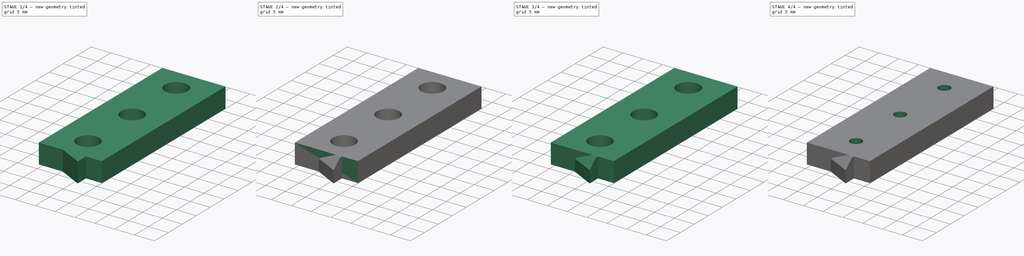
[diagram: build sequence overview — one tinted view per stage of 4, left to right]
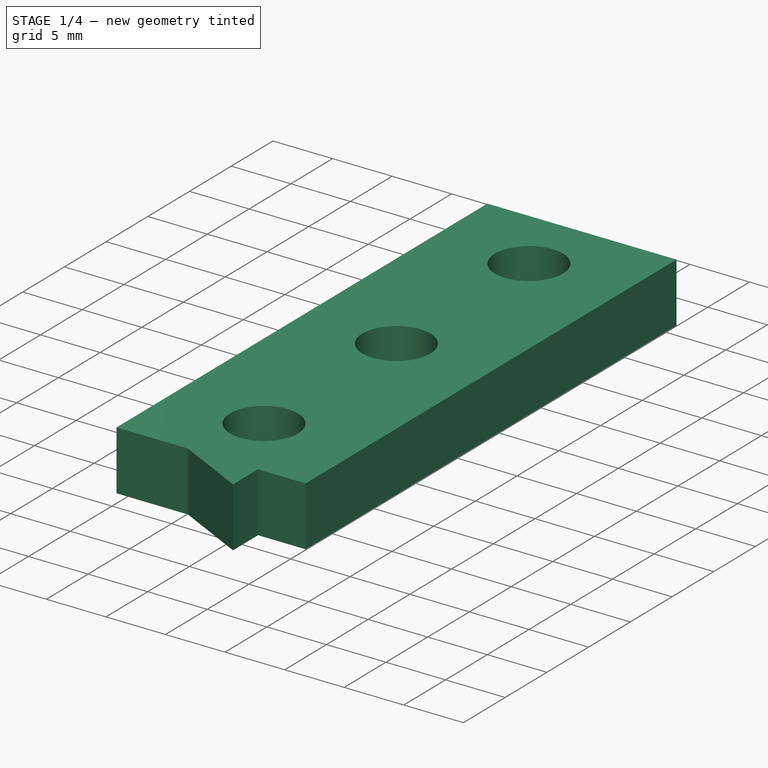
[diagram: stage 1 of 4 — iso view after this stage's code; geometry added in this stage tinted green]
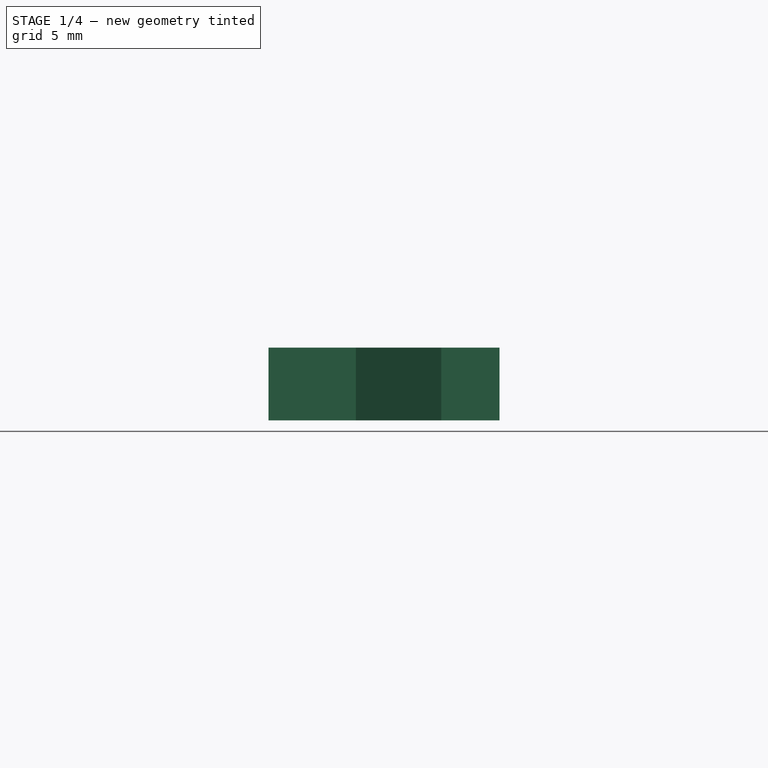
[diagram: stage 1 of 4 — front view after this stage's code; geometry added in this stage tinted green]
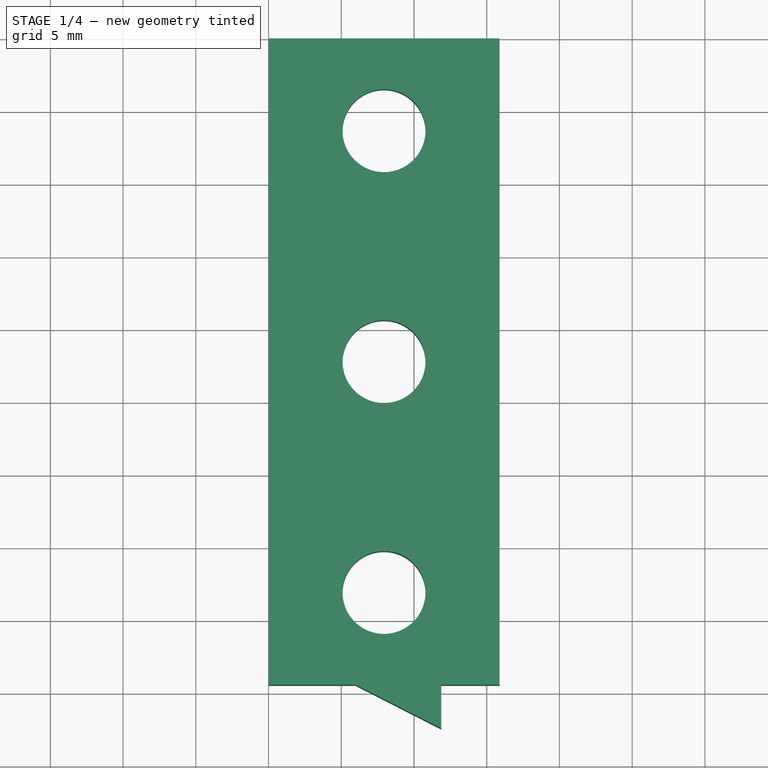
[diagram: stage 1 of 4 — top view after this stage's code; geometry added in this stage tinted green]
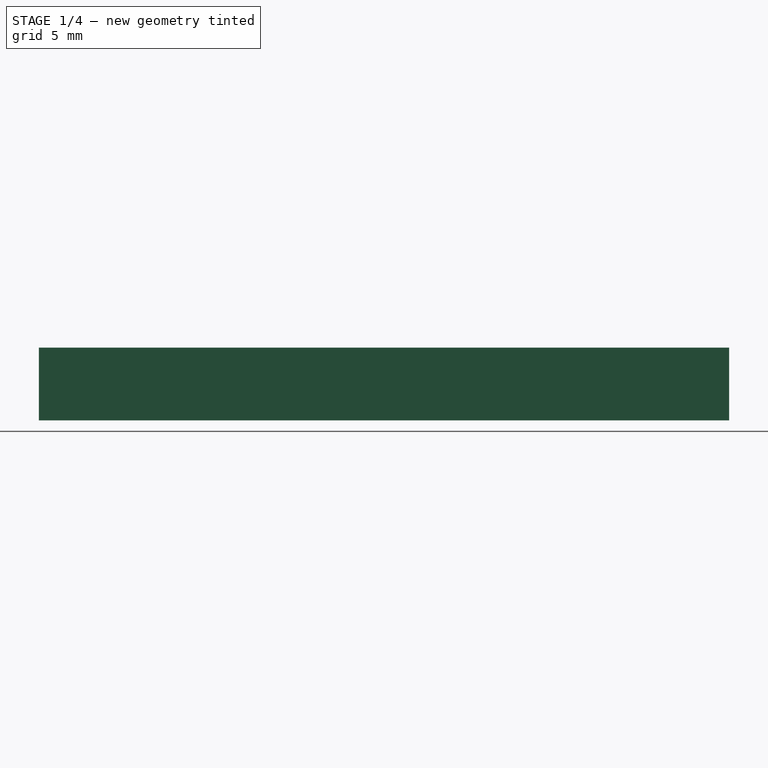
[diagram: stage 1 of 4 — right view after this stage's code; geometry added in this stage tinted green]
FCSTD DOCUMENT  (FreeCAD 0.18R16146 (Git))
Label: 1u-connectors
License: All rights reserved
LicenseURL: http://en.wikipedia.org/wiki/All_rights_reserved
objects: Sketcher::SketchObject×8, PartDesign::Pad×6, PartDesign::Body×6, PartDesign::Chamfer×6, PartDesign::Pocket×2
note: 36 computed .brp shape members not serialized (recipe doc carries the construction recipe); baked Part::Feature solids carry a one-line shape summary decoded from their .brp

FEATURE [Sketcher::SketchObject] Sketch
  MapMode = 5
  Support = -> [XY_Plane]
  sketch-geometry (19):
    g0: LineSegment StartX=15.875 StartY=0 StartZ=0 EndX=15.875 EndY=-44.45 EndZ=0
    g1: LineSegment StartX=0 StartY=-44.45 StartZ=0 EndX=0 EndY=0 EndZ=0
    g2: Circle CenterX=7.9375 CenterY=-22.225 CenterZ=0 NormalX=0 NormalY=0 NormalZ=1 AngleXU=0 Radius=2.85
    g3: LineSegment [constr] StartX=7.9375 StartY=-22.225 StartZ=0 EndX=7.9375 EndY=0 EndZ=0
    g4: LineSegment [constr] StartX=7.9375 StartY=-22.225 StartZ=0 EndX=7.9375 EndY=-44.45 EndZ=0
    g5: LineSegment [constr] StartX=7.9375 StartY=-22.225 StartZ=0 EndX=15.875 EndY=-22.225 EndZ=0
    g6: LineSegment [constr] StartX=7.9375 StartY=-22.225 StartZ=0 EndX=0 EndY=-22.225 EndZ=0
    g7: Circle CenterX=7.9375 CenterY=-38.1 CenterZ=0 NormalX=0 NormalY=0 NormalZ=1 AngleXU=0 Radius=2.85
    g8: Circle CenterX=7.9375 CenterY=-6.35 CenterZ=0 NormalX=0 NormalY=0 NormalZ=1 AngleXU=0 Radius=2.85
    g9: LineSegment [constr] StartX=0 StartY=0 StartZ=0 EndX=15.875 EndY=0 EndZ=0
    g10: LineSegment StartX=0 StartY=0 StartZ=0 EndX=6 EndY=0 EndZ=0
    g11: LineSegment StartX=6 StartY=0 StartZ=0 EndX=11.875 EndY=-3 EndZ=0
    g12: LineSegment StartX=15.875 StartY=0 StartZ=0 EndX=11.875 EndY=0 EndZ=0
    g13: LineSegment StartX=11.875 StartY=0 StartZ=0 EndX=11.875 EndY=-3 EndZ=0
    g14: LineSegment [constr] StartX=0 StartY=-44.45 StartZ=0 EndX=15.875 EndY=-44.45 EndZ=0
    g15: LineSegment StartX=0 StartY=-44.45 StartZ=0 EndX=6 EndY=-44.45 EndZ=0
    g16: LineSegment StartX=15.875 StartY=-44.45 StartZ=0 EndX=11.875 EndY=-44.45 EndZ=0
    g17: LineSegment StartX=11.875 StartY=-44.45 StartZ=0 EndX=11.875 EndY=-47.45 EndZ=0
    g18: LineSegment StartX=11.875 StartY=-47.45 StartZ=0 EndX=6 EndY=-44.45 EndZ=0
  constraints (54):
    c: Vertical(g0)
    c: Vertical(g1)
    c: DistanceX(g1,g0) = 15.875
    c: DistanceY(g1,g1) = 44.45
    c: Coincident(g3,g2)
    c: Vertical(g3)
    c: Coincident(g4,g2)
    c: Vertical(g4)
    c: Coincident(g5,g2)
    c: Horizontal(g5)
    c: Coincident(g6,g2)
    c: PointOnObject(g6,g1)
    c: Horizontal(g6)
    c: Equal(g6,g5)
    c: Equal(g3,g4)
    c: PointOnObject(g7,g4)
    c: PointOnObject(g8,g3)
    c: DistanceY(g2,g8) = 15.875
    c: DistanceY(g7,g8) = 31.75
    c: Equal(g8,g2)
    c: Equal(g2,g7)
    c: PointOnObject(g5,g0)
    c: Radius(g2) = 2.85
    c: Coincident(g1,g-1)
    c: Coincident(g9,g1)
    c: Coincident(g9,g0)
    c: Horizontal(g9)
    c: PointOnObject(g3,g9)
    c: PointOnObject(g10,g9)
    c: Coincident(g11,g10)
    c: Coincident(g12,g0)
    c: PointOnObject(g12,g9)
    c: Coincident(g13,g12)
    c: Coincident(g13,g11)
    c: Vertical(g13)
    c: DistanceX(g1,g10) = 6
    c: DistanceX(g12,g0) = 4
    c: DistanceY(g11,g12) = 3
    c: Coincident(g10,g1)
    c: Coincident(g14,g1)
    c: Coincident(g14,g0)
    c: Horizontal(g14)
    c: PointOnObject(g4,g14)
    c: Coincident(g15,g1)
    c: PointOnObject(g15,g14)
    c: Equal(g15,g10)
    c: Coincident(g16,g0)
    c: PointOnObject(g16,g14)
    c: Equal(g16,g12)
    c: Vertical(g17)
    c: Coincident(g18,g17)
    c: Coincident(g18,g15)
    c: Coincident(g17,g16)
    c: Equal(g17,g13)
FEATURE [PartDesign::Pad] Pad
  Length = 5
  Length2 = 100
  Profile = -> Sketch
  Type = 0
FEATURE [Sketcher::SketchObject] Sketch006
  MapMode = 5
  Support = -> [XY_Plane002]
  sketch-geometry (15):
    g0: LineSegment StartX=15.875 StartY=0 StartZ=0 EndX=15.875 EndY=-44.45 EndZ=0
    g1: LineSegment StartX=0 StartY=-44.45 StartZ=0 EndX=0 EndY=0 EndZ=0
    g2: Circle CenterX=7.9375 CenterY=-22.225 CenterZ=0 NormalX=0 NormalY=0 NormalZ=1 AngleXU=0 Radius=2.85
    g3: LineSegment [constr] StartX=7.9375 StartY=-22.225 StartZ=0 EndX=7.9375 EndY=0 EndZ=0
    g4: LineSegment [constr] StartX=7.9375 StartY=-22.225 StartZ=0 EndX=7.9375 EndY=-44.45 EndZ=0
    g5: LineSegment [constr] StartX=7.9375 StartY=-22.225 StartZ=0 EndX=15.875 EndY=-22.225 EndZ=0
    g6: LineSegment [constr] StartX=7.9375 StartY=-22.225 StartZ=0 EndX=0 EndY=-22.225 EndZ=0
    g7: Circle CenterX=7.9375 CenterY=-38.1 CenterZ=0 NormalX=0 NormalY=0 NormalZ=1 AngleXU=0 Radius=2.85
    g8: Circle CenterX=7.9375 CenterY=-6.35 CenterZ=0 NormalX=0 NormalY=0 NormalZ=1 AngleXU=0 Radius=2.85
    g9: LineSegment StartX=0 StartY=0 StartZ=0 EndX=15.875 EndY=0 EndZ=0
    g10: LineSegment [constr] StartX=0 StartY=-44.45 StartZ=0 EndX=15.875 EndY=-44.45 EndZ=0
    g11: LineSegment StartX=0 StartY=-44.45 StartZ=0 EndX=6 EndY=-44.45 EndZ=0
    g12: LineSegment StartX=15.875 StartY=-44.45 StartZ=0 EndX=11.875 EndY=-44.45 EndZ=0
    g13: LineSegment StartX=11.875 StartY=-44.45 StartZ=0 EndX=11.875 EndY=-47.45 EndZ=0
    g14: LineSegment StartX=11.875 StartY=-47.45 StartZ=0 EndX=6 EndY=-44.45 EndZ=0
  constraints (43):
    c: Vertical(g0)
    c: Vertical(g1)
    c: DistanceX(g1,g0) = 15.875
    c: DistanceY(g1,g1) = 44.45
    c: Coincident(g3,g2)
    c: Vertical(g3)
    c: Coincident(g4,g2)
    c: Vertical(g4)
    c: Coincident(g5,g2)
    c: Horizontal(g5)
    c: Coincident(g6,g2)
    c: PointOnObject(g6,g1)
    c: Horizontal(g6)
    c: Equal(g6,g5)
    c: Equal(g3,g4)
    c: PointOnObject(g7,g4)
    c: PointOnObject(g8,g3)
    c: DistanceY(g2,g8) = 15.875
    c: DistanceY(g7,g8) = 31.75
    c: Equal(g8,g2)
    c: Equal(g2,g7)
    c: PointOnObject(g5,g0)
    c: Radius(g2) = 2.85
    c: Coincident(g1,g-1)
    c: Coincident(g9,g1)
    c: Coincident(g9,g0)
    c: Horizontal(g9)
    c: PointOnObject(g3,g9)
    c: Coincident(g10,g1)
    c: Coincident(g10,g0)
    c: Horizontal(g10)
    c: PointOnObject(g4,g10)
    c: Coincident(g11,g1)
    c: PointOnObject(g11,g10)
    c: Coincident(g12,g0)
    c: PointOnObject(g12,g10)
    c: Vertical(g13)
    c: Coincident(g14,g13)
    c: Coincident(g14,g11)
    c: Coincident(g13,g12)
    c: DistanceX(g11,g11) = 6
    c: DistanceX(g12,g12) = 4
    c: DistanceY(g13,g13) = 3
FEATURE [PartDesign::Pad] Pad002
  Length = 5
  Length2 = 100
  Profile = -> Sketch006
  Type = 0
FEATURE [PartDesign::Chamfer] Chamfer
  Base = -> Pad [Edge35,Edge38,Edge32]
  BaseFeature = -> Pad
  Size = 1.7
FEATURE [PartDesign::Body] Body002  label="1u-6m-end-flat"
  Group = -> [Sketch006,Pad002,Chamfer001,Chamfer004]
  Origin = -> Origin002
  Placement = pos=(0,50.8,0) rot=(0,0,1;0rad)
  Tip = -> Chamfer004
FEATURE [PartDesign::Chamfer] Chamfer005
  Base = -> Chamfer [Edge10]
  BaseFeature = -> Chamfer
  Size = 2
FEATURE [PartDesign::Body] Body  label="1u-6m-connector"
  Group = -> [Sketch,Pad,Chamfer,Chamfer005]
  Origin = -> Origin
  Tip = -> Chamfer005
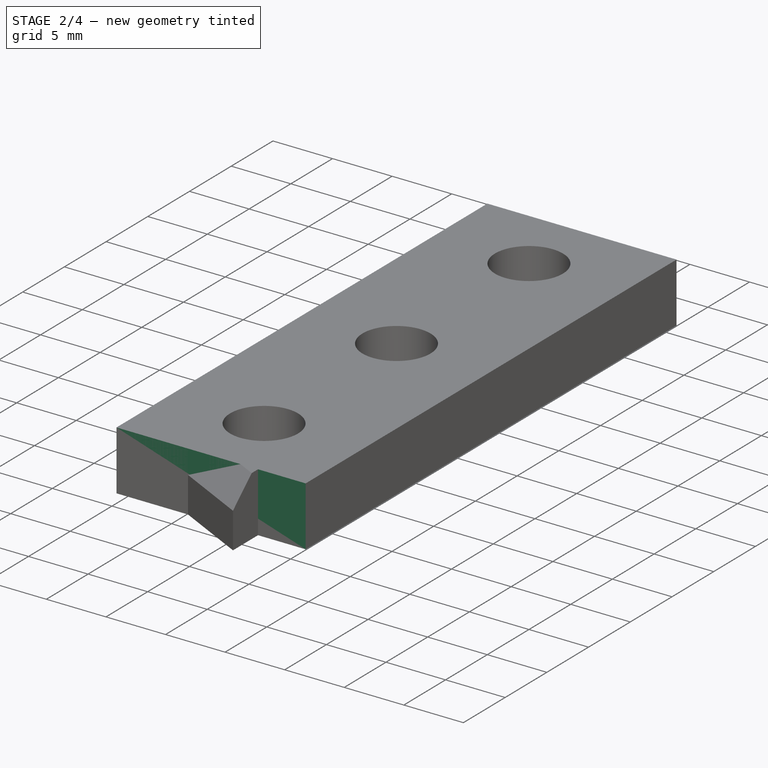
[diagram: stage 2 of 4 — iso view after this stage's code; geometry added in this stage tinted green]
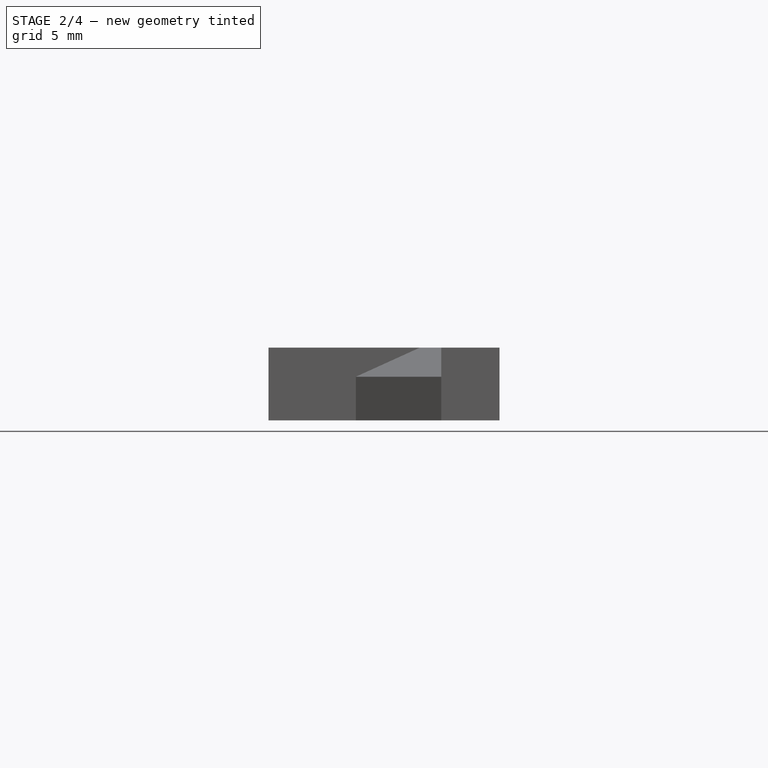
[diagram: stage 2 of 4 — front view after this stage's code; geometry added in this stage tinted green]
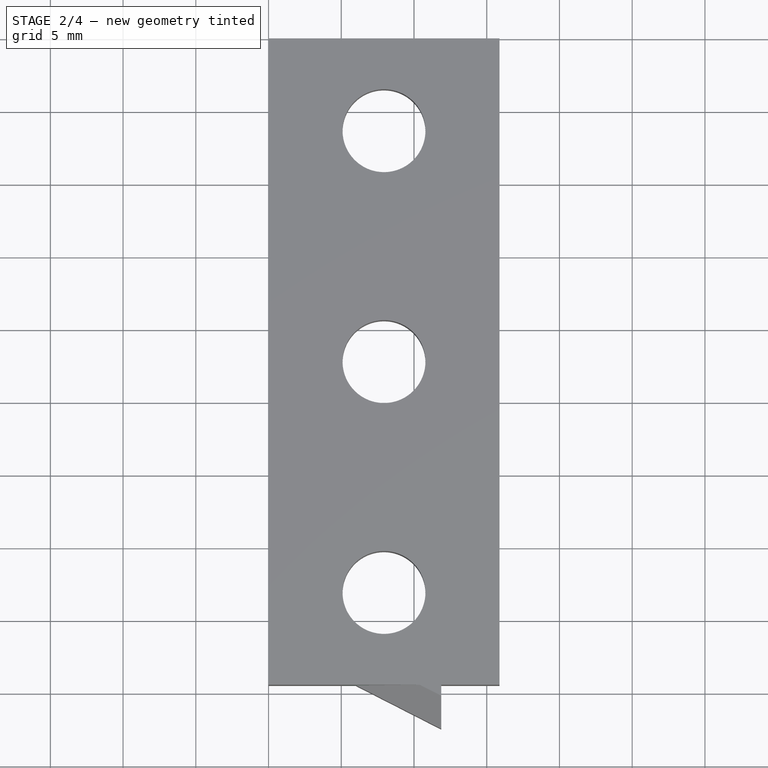
[diagram: stage 2 of 4 — top view after this stage's code; geometry added in this stage tinted green]
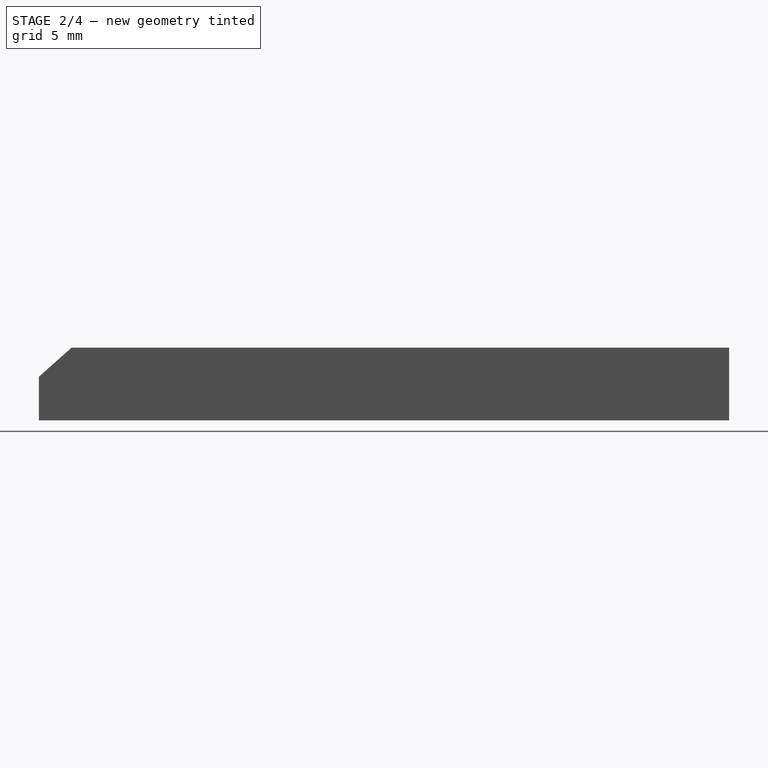
[diagram: stage 2 of 4 — right view after this stage's code; geometry added in this stage tinted green]
FEATURE [PartDesign::Body] Body004  label="1u-3m"
  Group = -> [Sketch010,Pad004,Sketch009,Pocket004]
  Origin = -> Origin004
  Placement = pos=(90,0,0) rot=(0,0,1;0rad)
  Tip = -> Pocket004
FEATURE [Sketcher::SketchObject] Sketch012
  MapMode = 5
  Support = -> [XY_Plane005]
  sketch-geometry (11):
    g0: LineSegment StartX=15.875 StartY=0 StartZ=0 EndX=15.875 EndY=-44.45 EndZ=0
    g1: LineSegment StartX=0 StartY=-44.45 StartZ=0 EndX=0 EndY=0 EndZ=0
    g2: Circle CenterX=7.9375 CenterY=-22.225 CenterZ=0 NormalX=0 NormalY=0 NormalZ=1 AngleXU=0 Radius=2.85
    g3: LineSegment [constr] StartX=7.9375 StartY=-22.225 StartZ=0 EndX=7.9375 EndY=0 EndZ=0
    g4: LineSegment [constr] StartX=7.9375 StartY=-22.225 StartZ=0 EndX=7.9375 EndY=-44.45 EndZ=0
    g5: LineSegment [constr] StartX=7.9375 StartY=-22.225 StartZ=0 EndX=15.875 EndY=-22.225 EndZ=0
    g6: LineSegment [constr] StartX=7.9375 StartY=-22.225 StartZ=0 EndX=0 EndY=-22.225 EndZ=0
    g7: Circle CenterX=7.9375 CenterY=-38.1 CenterZ=0 NormalX=0 NormalY=0 NormalZ=1 AngleXU=0 Radius=2.85
    g8: Circle CenterX=7.9375 CenterY=-6.35 CenterZ=0 NormalX=0 NormalY=0 NormalZ=1 AngleXU=0 Radius=2.85
    g9: LineSegment StartX=0 StartY=0 StartZ=0 EndX=15.875 EndY=0 EndZ=0
    g10: LineSegment StartX=0 StartY=-44.45 StartZ=0 EndX=15.875 EndY=-44.45 EndZ=0
  constraints (32):
    c: Vertical(g0)
    c: Vertical(g1)
    c: DistanceX(g1,g0) = 15.875
    c: DistanceY(g1,g1) = 44.45
    c: Coincident(g3,g2)
    c: Vertical(g3)
    c: Coincident(g4,g2)
    c: Vertical(g4)
    c: Coincident(g5,g2)
    c: Horizontal(g5)
    c: Coincident(g6,g2)
    c: PointOnObject(g6,g1)
    c: Horizontal(g6)
    c: Equal(g6,g5)
    c: Equal(g3,g4)
    c: PointOnObject(g7,g4)
    c: PointOnObject(g8,g3)
    c: DistanceY(g2,g8) = 15.875
    c: DistanceY(g7,g8) = 31.75
    c: Equal(g8,g2)
    c: Equal(g2,g7)
    c: PointOnObject(g5,g0)
    c: Radius(g2) = 2.85
    c: Coincident(g1,g-1)
    c: Coincident(g9,g1)
    c: Coincident(g9,g0)
    c: Horizontal(g9)
    c: PointOnObject(g3,g9)
    c: Coincident(g10,g1)
    c: Coincident(g10,g0)
    c: Horizontal(g10)
    c: PointOnObject(g4,g10)
FEATURE [PartDesign::Pad] Pad005
  Length = 5
  Length2 = 100
  Profile = -> Sketch012
  Type = 0
FEATURE [PartDesign::Chamfer] Chamfer001
  Base = -> Pad002 [Edge23,Edge29,Edge26]
  BaseFeature = -> Pad002
  Size = 1.7
FEATURE [PartDesign::Body] Body005  label="1u-6m"
  Group = -> [Sketch012,Pad005,Chamfer003]
  Origin = -> Origin005
  Placement = pos=(30,0,0) rot=(0,0,1;0rad)
  Tip = -> Chamfer003
FEATURE [PartDesign::Chamfer] Chamfer004
  Base = -> Chamfer001 [Edge11]
  BaseFeature = -> Chamfer001
  Size = 2
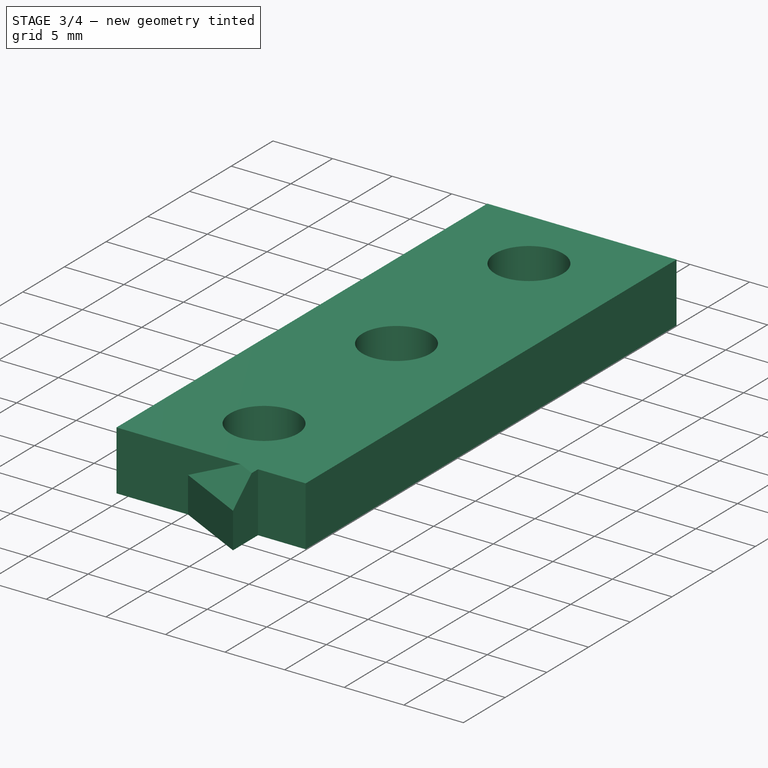
[diagram: stage 3 of 4 — iso view after this stage's code; geometry added in this stage tinted green]
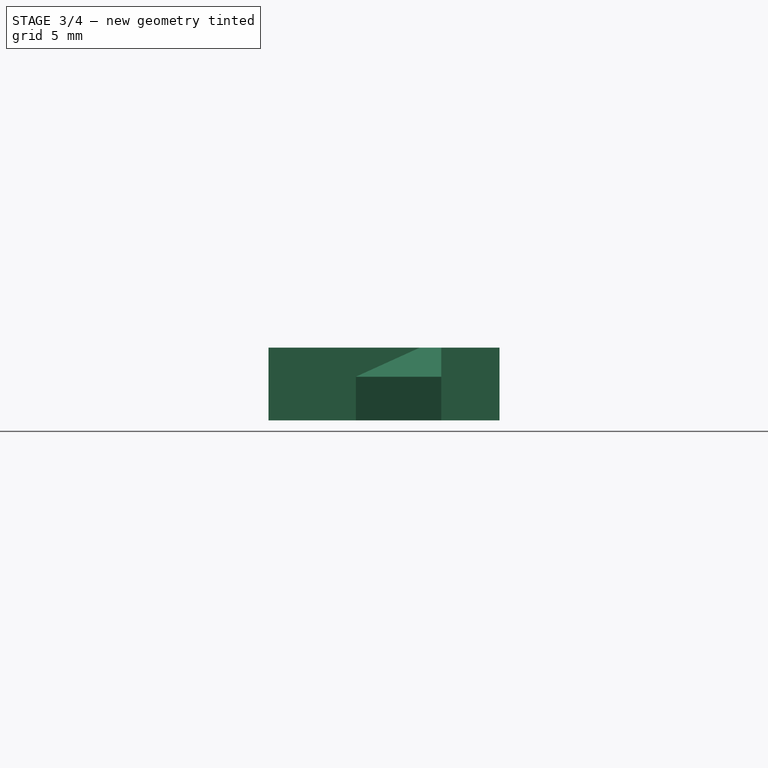
[diagram: stage 3 of 4 — front view after this stage's code; geometry added in this stage tinted green]
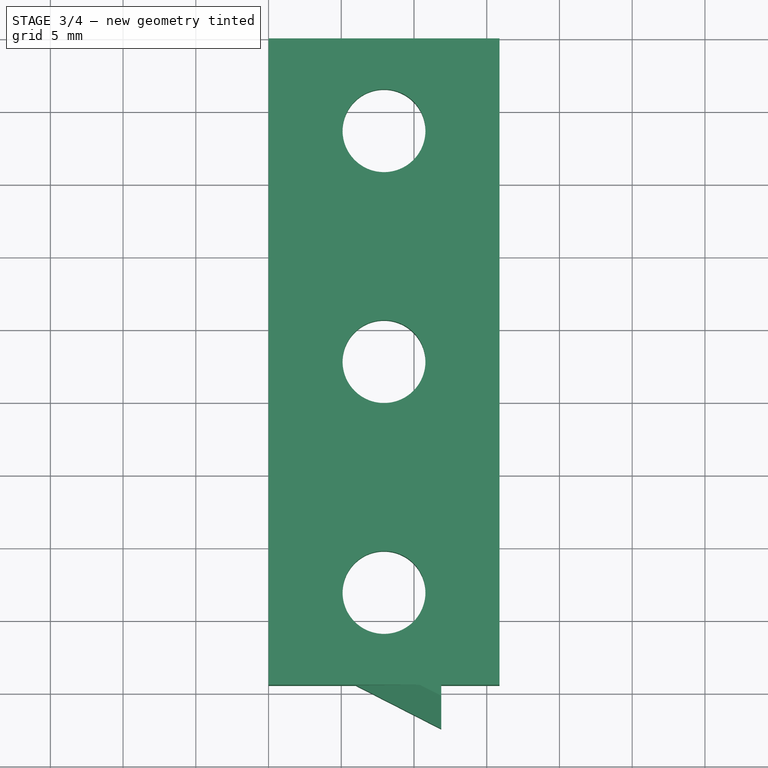
[diagram: stage 3 of 4 — top view after this stage's code; geometry added in this stage tinted green]
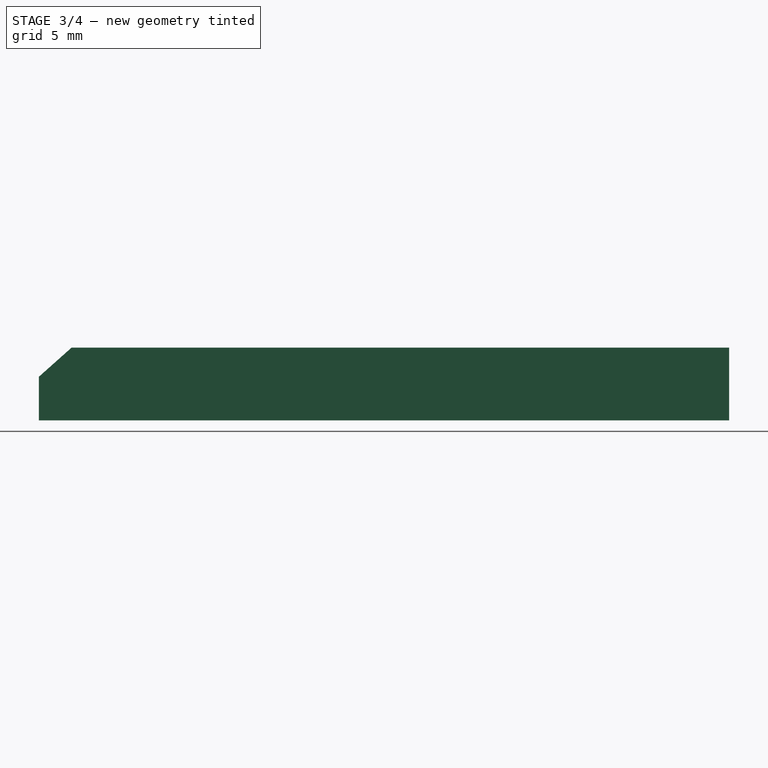
[diagram: stage 3 of 4 — right view after this stage's code; geometry added in this stage tinted green]
FEATURE [Sketcher::SketchObject] Sketch004
  MapMode = 5
  Support = -> [XY_Plane001]
  sketch-geometry (15):
    g0: LineSegment StartX=15.875 StartY=0 StartZ=0 EndX=15.875 EndY=-44.45 EndZ=0
    g1: LineSegment StartX=0 StartY=-44.45 StartZ=0 EndX=0 EndY=0 EndZ=0
    g2: Circle CenterX=7.9375 CenterY=-22.225 CenterZ=0 NormalX=0 NormalY=0 NormalZ=1 AngleXU=0 Radius=2.85
    g3: LineSegment [constr] StartX=7.9375 StartY=-22.225 StartZ=0 EndX=7.9375 EndY=0 EndZ=0
    g4: LineSegment [constr] StartX=7.9375 StartY=-22.225 StartZ=0 EndX=7.9375 EndY=-44.45 EndZ=0
    g5: LineSegment [constr] StartX=7.9375 StartY=-22.225 StartZ=0 EndX=15.875 EndY=-22.225 EndZ=0
    g6: LineSegment [constr] StartX=7.9375 StartY=-22.225 StartZ=0 EndX=0 EndY=-22.225 EndZ=0
    g7: Circle CenterX=7.9375 CenterY=-38.1 CenterZ=0 NormalX=0 NormalY=0 NormalZ=1 AngleXU=0 Radius=2.85
    g8: Circle CenterX=7.9375 CenterY=-6.35 CenterZ=0 NormalX=0 NormalY=0 NormalZ=1 AngleXU=0 Radius=2.85
    g9: LineSegment [constr] StartX=0 StartY=0 StartZ=0 EndX=15.875 EndY=0 EndZ=0
    g10: LineSegment StartX=0 StartY=0 StartZ=0 EndX=6 EndY=0 EndZ=0
    g11: LineSegment StartX=6 StartY=0 StartZ=0 EndX=11.875 EndY=-3 EndZ=0
    g12: LineSegment StartX=15.875 StartY=0 StartZ=0 EndX=11.875 EndY=0 EndZ=0
    g13: LineSegment StartX=11.875 StartY=0 StartZ=0 EndX=11.875 EndY=-3 EndZ=0
    g14: LineSegment StartX=0 StartY=-44.45 StartZ=0 EndX=15.875 EndY=-44.45 EndZ=0
  constraints (43):
    c: Vertical(g0)
    c: Vertical(g1)
    c: DistanceX(g1,g0) = 15.875
    c: DistanceY(g1,g1) = 44.45
    c: Coincident(g3,g2)
    c: Vertical(g3)
    c: Coincident(g4,g2)
    c: Vertical(g4)
    c: Coincident(g5,g2)
    c: Horizontal(g5)
    c: Coincident(g6,g2)
    c: PointOnObject(g6,g1)
    c: Horizontal(g6)
    c: Equal(g6,g5)
    c: Equal(g3,g4)
    c: PointOnObject(g7,g4)
    c: PointOnObject(g8,g3)
    c: DistanceY(g2,g8) = 15.875
    c: DistanceY(g7,g8) = 31.75
    c: Equal(g8,g2)
    c: Equal(g2,g7)
    c: PointOnObject(g5,g0)
    c: Radius(g2) = 2.85
    c: Coincident(g1,g-1)
    c: Coincident(g9,g1)
    c: Coincident(g9,g0)
    c: Horizontal(g9)
    c: PointOnObject(g3,g9)
    c: PointOnObject(g10,g9)
    c: Coincident(g11,g10)
    c: Coincident(g12,g0)
    c: PointOnObject(g12,g9)
    c: Coincident(g13,g12)
    c: Coincident(g13,g11)
    c: Vertical(g13)
    c: DistanceX(g1,g10) = 6
    c: DistanceX(g12,g0) = 4
    c: DistanceY(g11,g12) = 3
    c: Coincident(g10,g1)
    c: Coincident(g14,g1)
    c: Coincident(g14,g0)
    c: Horizontal(g14)
    c: PointOnObject(g4,g14)
FEATURE [PartDesign::Pad] Pad001
  Length = 5
  Length2 = 100
  Profile = -> Sketch004
  Type = 0
FEATURE [PartDesign::Chamfer] Chamfer002
  Base = -> Pad001 [Edge23,Edge29,Edge26]
  BaseFeature = -> Pad001
  Size = 1.7
FEATURE [PartDesign::Body] Body001  label="1u-6m-end-point"
  Group = -> [Sketch004,Pad001,Chamfer002]
  Origin = -> Origin001
  Placement = pos=(0,-50.8,0) rot=(0,0,1;0rad)
  Tip = -> Chamfer002
FEATURE [PartDesign::Chamfer] Chamfer003
  Base = -> Pad005 [Edge14,Edge17,Edge20]
  BaseFeature = -> Pad005
  Size = 1.7
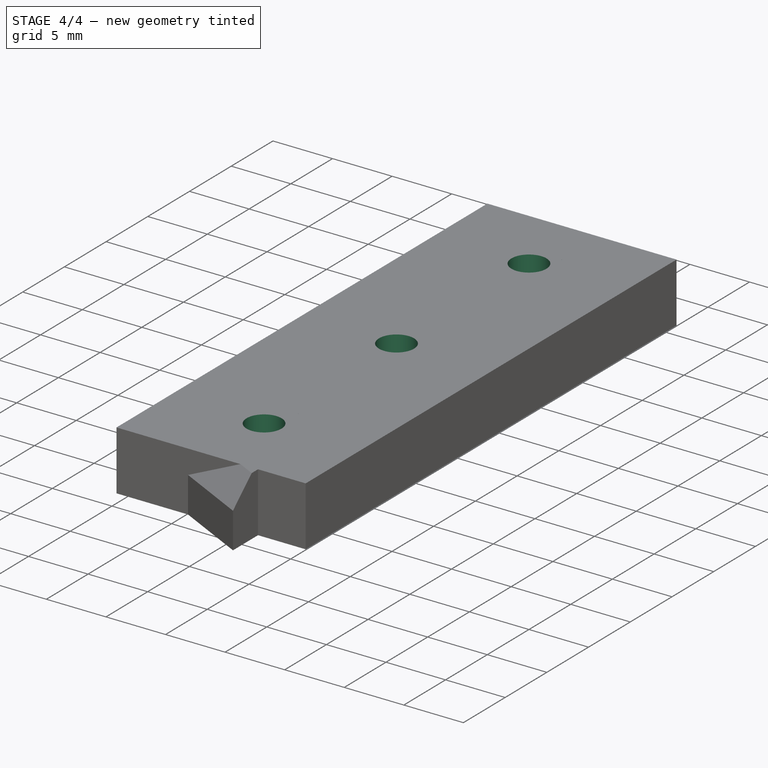
[diagram: stage 4 of 4 — iso view after this stage's code; geometry added in this stage tinted green]
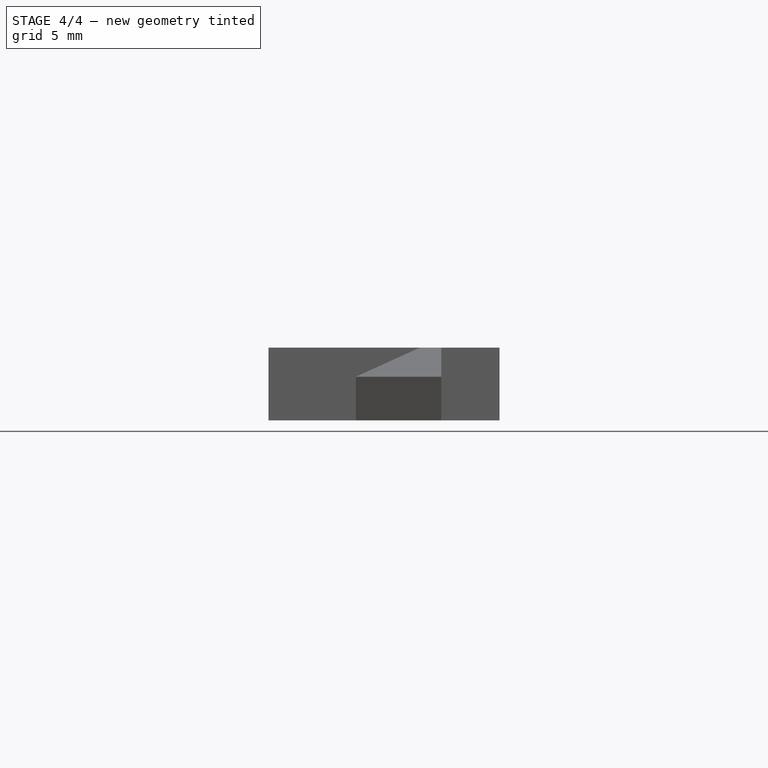
[diagram: stage 4 of 4 — front view after this stage's code; geometry added in this stage tinted green]
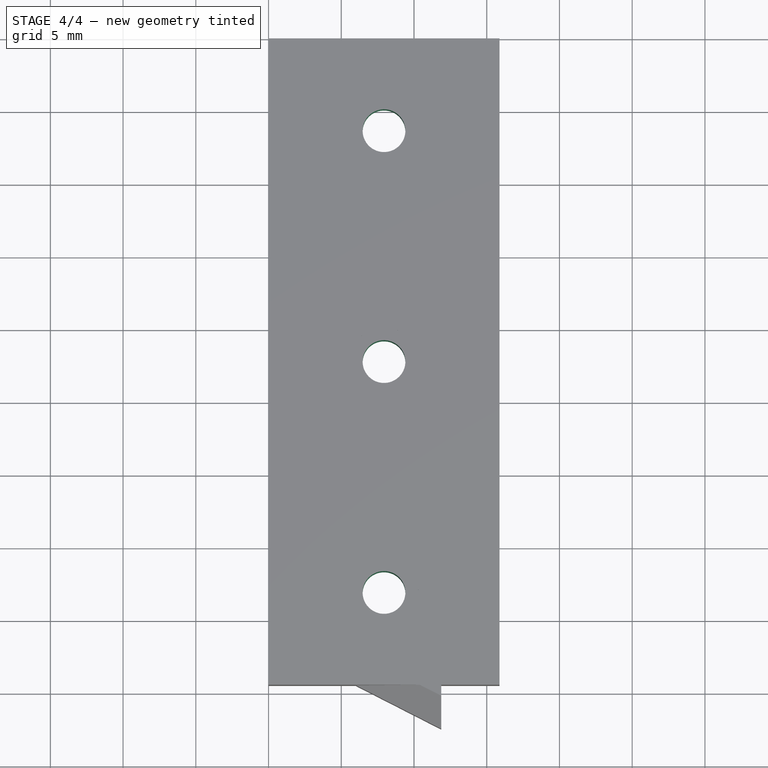
[diagram: stage 4 of 4 — top view after this stage's code; geometry added in this stage tinted green]
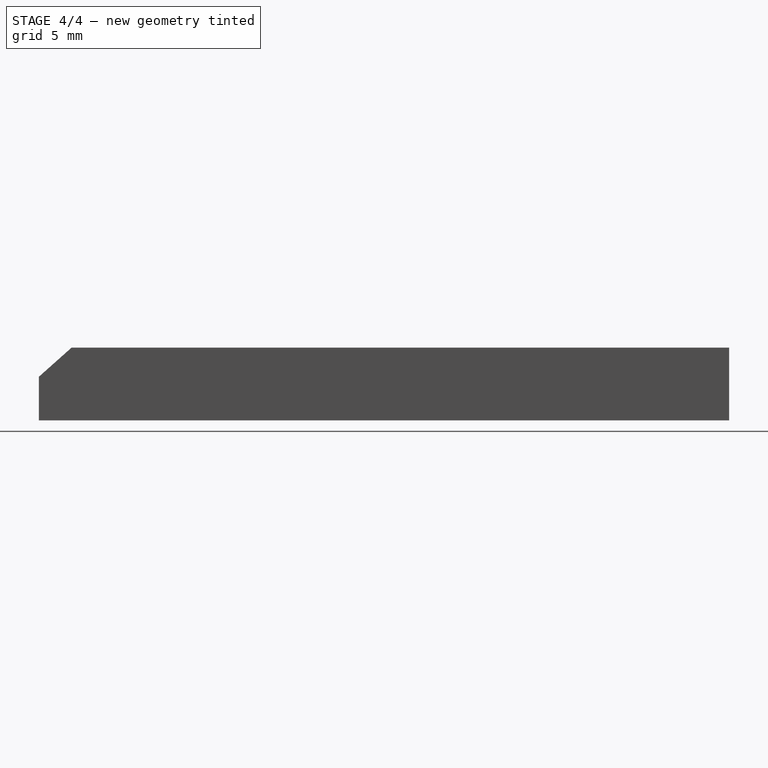
[diagram: stage 4 of 4 — right view after this stage's code; geometry added in this stage tinted green]
FEATURE [Sketcher::SketchObject] Sketch008
  MapMode = 5
  Support = -> [XY_Plane003]
  sketch-geometry (11):
    g0: LineSegment StartX=15.875 StartY=0 StartZ=0 EndX=15.875 EndY=-44.45 EndZ=0
    g1: LineSegment StartX=0 StartY=-44.45 StartZ=0 EndX=0 EndY=0 EndZ=0
    g2: Circle CenterX=7.9375 CenterY=-22.225 CenterZ=0 NormalX=0 NormalY=0 NormalZ=1 AngleXU=0 Radius=2.35
    g3: LineSegment [constr] StartX=7.9375 StartY=-22.225 StartZ=0 EndX=7.9375 EndY=0 EndZ=0
    g4: LineSegment [constr] StartX=7.9375 StartY=-22.225 StartZ=0 EndX=7.9375 EndY=-44.45 EndZ=0
    g5: LineSegment [constr] StartX=7.9375 StartY=-22.225 StartZ=0 EndX=15.875 EndY=-22.225 EndZ=0
    g6: LineSegment [constr] StartX=7.9375 StartY=-22.225 StartZ=0 EndX=0 EndY=-22.225 EndZ=0
    g7: Circle CenterX=7.9375 CenterY=-38.1 CenterZ=0 NormalX=0 NormalY=0 NormalZ=1 AngleXU=0 Radius=2.35
    g8: Circle CenterX=7.9375 CenterY=-6.35 CenterZ=0 NormalX=0 NormalY=0 NormalZ=1 AngleXU=0 Radius=2.35
    g9: LineSegment StartX=0 StartY=0 StartZ=0 EndX=15.875 EndY=0 EndZ=0
    g10: LineSegment StartX=0 StartY=-44.45 StartZ=0 EndX=15.875 EndY=-44.45 EndZ=0
  constraints (32):
    c: Vertical(g0)
    c: Vertical(g1)
    c: DistanceX(g1,g0) = 15.875
    c: DistanceY(g1,g1) = 44.45
    c: Coincident(g3,g2)
    c: Vertical(g3)
    c: Coincident(g4,g2)
    c: Vertical(g4)
    c: Coincident(g5,g2)
    c: Horizontal(g5)
    c: Coincident(g6,g2)
    c: PointOnObject(g6,g1)
    c: Horizontal(g6)
    c: Equal(g6,g5)
    c: Equal(g3,g4)
    c: PointOnObject(g7,g4)
    c: PointOnObject(g8,g3)
    c: DistanceY(g2,g8) = 15.875
    c: DistanceY(g7,g8) = 31.75
    c: Equal(g8,g2)
    c: Equal(g2,g7)
    c: PointOnObject(g5,g0)
    c: Radius(g2) = 2.35
    c: Coincident(g1,g-1)
    c: Coincident(g9,g1)
    c: Coincident(g9,g0)
    c: Horizontal(g9)
    c: PointOnObject(g3,g9)
    c: Coincident(g10,g1)
    c: Coincident(g10,g0)
    c: Horizontal(g10)
    c: PointOnObject(g4,g10)
FEATURE [PartDesign::Pad] Pad003
  Length = 5
  Length2 = 100
  Profile = -> Sketch008
  Type = 0
FEATURE [Sketcher::SketchObject] Sketch007
  ExternalGeometry = -> [Pad003]
  MapMode = 5
  Placement = pos=(0,0,5) rot=(0,0,1;0rad)
  Support = -> [Pad003]
  sketch-geometry (10):
    g0: LineSegment [constr] StartX=7.9375 StartY=-22.225 StartZ=0 EndX=7.9375 EndY=-0.381 EndZ=0
    g1: LineSegment [constr] StartX=7.9375 StartY=-22.225 StartZ=0 EndX=7.9375 EndY=-44.069 EndZ=0
    g2: LineSegment StartX=0 StartY=-44.45 StartZ=0 EndX=15.875 EndY=-44.45 EndZ=0
    g3: LineSegment StartX=15.875 StartY=-44.45 StartZ=0 EndX=15.875 EndY=-44.069 EndZ=0
    g4: LineSegment StartX=15.875 StartY=-44.069 StartZ=0 EndX=0 EndY=-44.069 EndZ=0
    g5: LineSegment StartX=0 StartY=-44.069 StartZ=0 EndX=0 EndY=-44.45 EndZ=0
    g6: LineSegment StartX=15.875 StartY=0 StartZ=0 EndX=0 EndY=0 EndZ=0
    g7: LineSegment StartX=15.875 StartY=0 StartZ=0 EndX=15.875 EndY=-0.381 EndZ=0
    g8: LineSegment StartX=15.875 StartY=-0.381 StartZ=0 EndX=0 EndY=-0.381 EndZ=0
    g9: LineSegment StartX=0 StartY=-0.381 StartZ=0 EndX=0 EndY=0 EndZ=0
FEATURE [PartDesign::Pocket] Pocket003
  BaseFeature = -> Pad003
  Length = 0.2
  Length2 = 100
  Profile = -> Sketch007
  Type = 0
FEATURE [PartDesign::Body] Body003  label="1u-5m"
  Group = -> [Sketch008,Pad003,Sketch007,Pocket003]
  Origin = -> Origin003
  Placement = pos=(60,0,0) rot=(0,0,1;0rad)
  Tip = -> Pocket003
FEATURE [Sketcher::SketchObject] Sketch010
  MapMode = 5
  Support = -> [XY_Plane004]
  sketch-geometry (11):
    g0: LineSegment StartX=15.875 StartY=0 StartZ=0 EndX=15.875 EndY=-44.45 EndZ=0
    g1: LineSegment StartX=0 StartY=-44.45 StartZ=0 EndX=0 EndY=0 EndZ=0
    g2: Circle CenterX=7.9375 CenterY=-22.225 CenterZ=0 NormalX=0 NormalY=0 NormalZ=1 AngleXU=0 Radius=1.47
    g3: LineSegment [constr] StartX=7.9375 StartY=-22.225 StartZ=0 EndX=7.9375 EndY=0 EndZ=0
    g4: LineSegment [constr] StartX=7.9375 StartY=-22.225 StartZ=0 EndX=7.9375 EndY=-44.45 EndZ=0
    g5: LineSegment [constr] StartX=7.9375 StartY=-22.225 StartZ=0 EndX=15.875 EndY=-22.225 EndZ=0
    g6: LineSegment [constr] StartX=7.9375 StartY=-22.225 StartZ=0 EndX=0 EndY=-22.225 EndZ=0
    g7: Circle CenterX=7.9375 CenterY=-38.1 CenterZ=0 NormalX=0 NormalY=0 NormalZ=1 AngleXU=0 Radius=1.47
    g8: Circle CenterX=7.9375 CenterY=-6.35 CenterZ=0 NormalX=0 NormalY=0 NormalZ=1 AngleXU=0 Radius=1.47
    g9: LineSegment StartX=0 StartY=0 StartZ=0 EndX=15.875 EndY=0 EndZ=0
    g10: LineSegment StartX=0 StartY=-44.45 StartZ=0 EndX=15.875 EndY=-44.45 EndZ=0
  constraints (32):
    c: Vertical(g0)
    c: Vertical(g1)
    c: DistanceX(g1,g0) = 15.875
    c: DistanceY(g1,g1) = 44.45
    c: Coincident(g3,g2)
    c: Vertical(g3)
    c: Coincident(g4,g2)
    c: Vertical(g4)
    c: Coincident(g5,g2)
    c: Horizontal(g5)
    c: Coincident(g6,g2)
    c: PointOnObject(g6,g1)
    c: Horizontal(g6)
    c: Equal(g6,g5)
    c: Equal(g3,g4)
    c: PointOnObject(g7,g4)
    c: PointOnObject(g8,g3)
    c: DistanceY(g2,g8) = 15.875
    c: DistanceY(g7,g8) = 31.75
    c: Equal(g8,g2)
    c: Equal(g2,g7)
    c: PointOnObject(g5,g0)
    c: Radius(g2) = 1.47
    c: Coincident(g1,g-1)
    c: Coincident(g9,g1)
    c: Coincident(g9,g0)
    c: Horizontal(g9)
    c: PointOnObject(g3,g9)
    c: Coincident(g10,g1)
    c: Coincident(g10,g0)
    c: Horizontal(g10)
    c: PointOnObject(g4,g10)
FEATURE [PartDesign::Pad] Pad004
  Length = 5
  Length2 = 100
  Profile = -> Sketch010
  Type = 0
FEATURE [Sketcher::SketchObject] Sketch009
  ExternalGeometry = -> [Pad004]
  MapMode = 5
  Placement = pos=(0,0,5) rot=(0,0,1;0rad)
  Support = -> [Pad004]
  sketch-geometry (10):
    g0: LineSegment [constr] StartX=7.9375 StartY=-22.225 StartZ=0 EndX=7.9375 EndY=-0.381 EndZ=0
    g1: LineSegment [constr] StartX=7.9375 StartY=-22.225 StartZ=0 EndX=7.9375 EndY=-44.069 EndZ=0
    g2: LineSegment StartX=0 StartY=-44.45 StartZ=0 EndX=15.875 EndY=-44.45 EndZ=0
    g3: LineSegment StartX=15.875 StartY=-44.45 StartZ=0 EndX=15.875 EndY=-44.069 EndZ=0
    g4: LineSegment StartX=15.875 StartY=-44.069 StartZ=0 EndX=0 EndY=-44.069 EndZ=0
    g5: LineSegment StartX=0 StartY=-44.069 StartZ=0 EndX=0 EndY=-44.45 EndZ=0
    g6: LineSegment StartX=15.875 StartY=0 StartZ=0 EndX=0 EndY=0 EndZ=0
    g7: LineSegment StartX=15.875 StartY=0 StartZ=0 EndX=15.875 EndY=-0.381 EndZ=0
    g8: LineSegment StartX=15.875 StartY=-0.381 StartZ=0 EndX=0 EndY=-0.381 EndZ=0
    g9: LineSegment StartX=0 StartY=-0.381 StartZ=0 EndX=0 EndY=0 EndZ=0
FEATURE [PartDesign::Pocket] Pocket004
  BaseFeature = -> Pad004
  Length = 0.2
  Length2 = 100
  Profile = -> Sketch009
  Type = 0
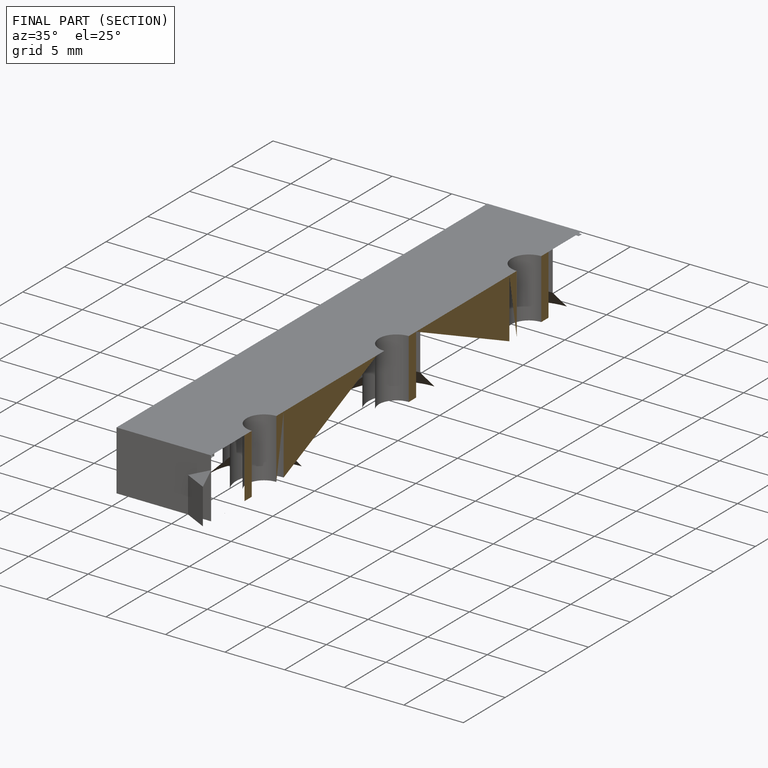
[diagram: finished part — half-section view (interior)]
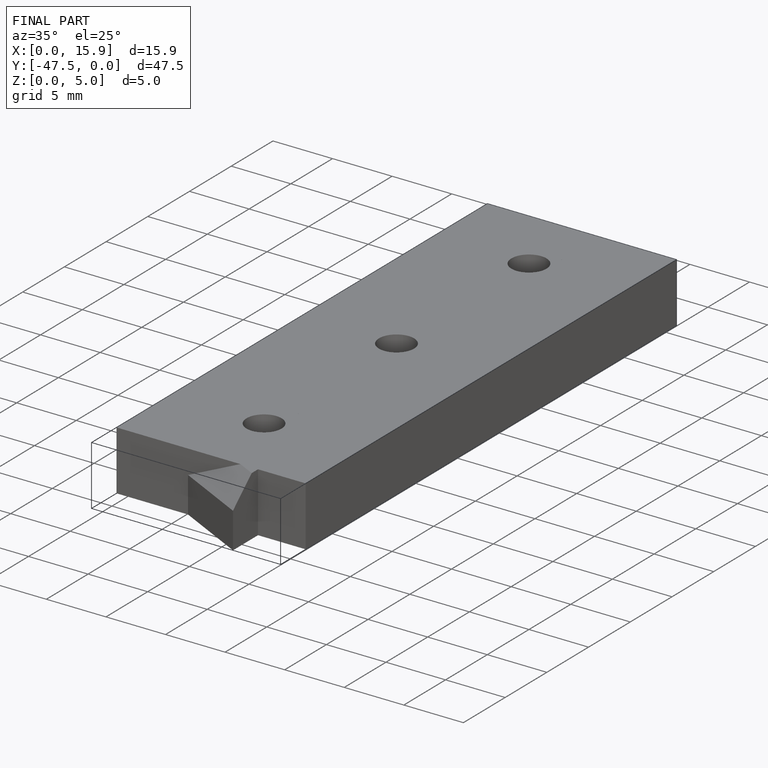
[diagram: finished part — iso view with bounding-box wireframe]
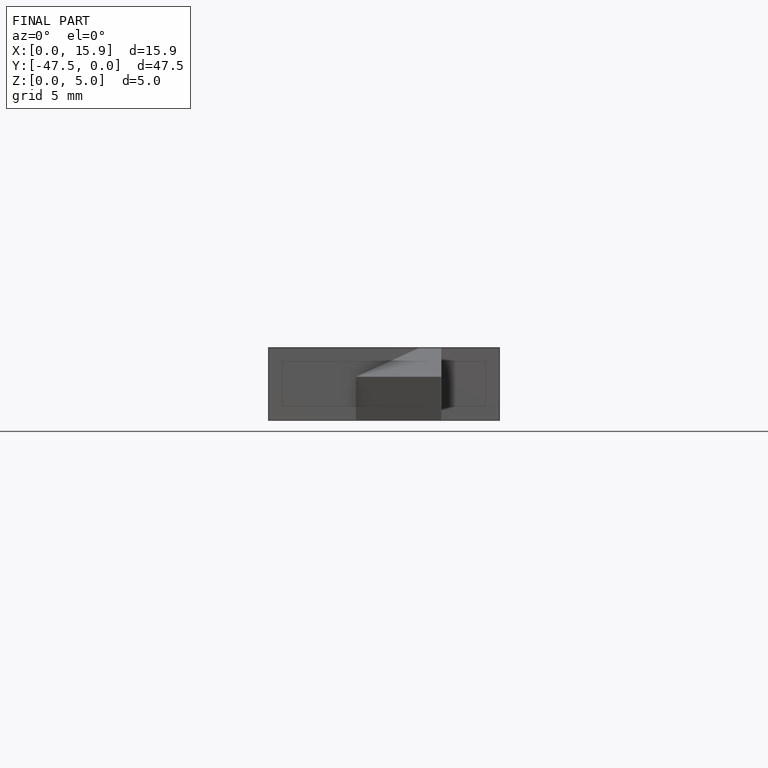
[diagram: finished part — front view with bounding-box wireframe]
